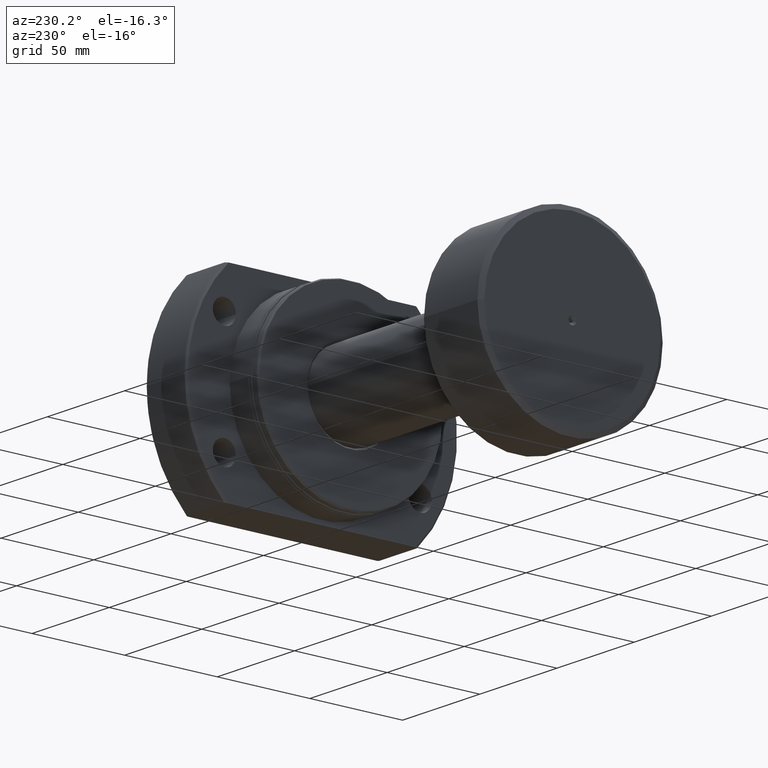
[diagram: clean part render]
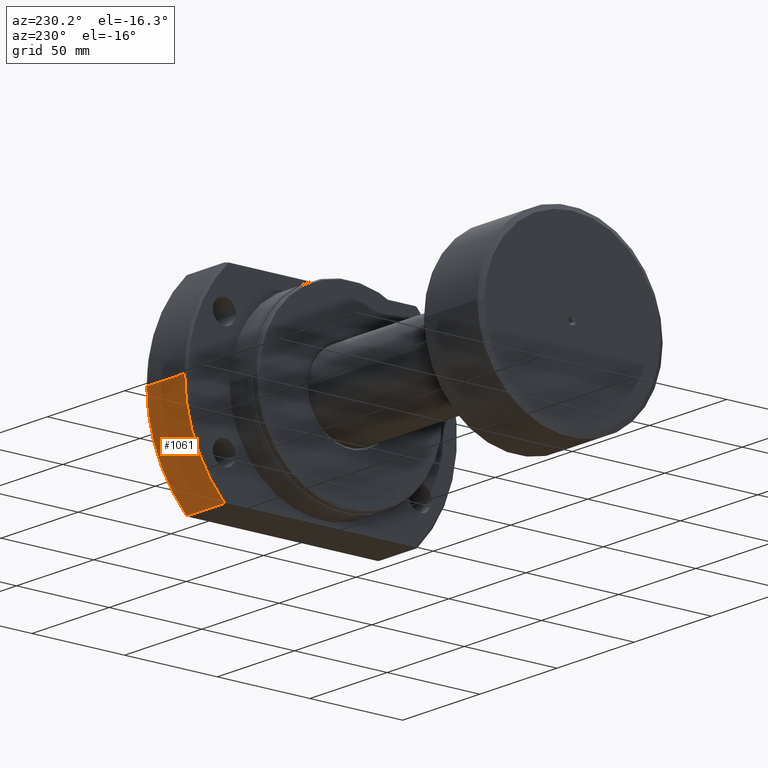
[diagram: same view with one face highlighted and labeled with its STEP entity id]
A machine part, auxiliary view. The second image highlights one B-rep face of the part: STEP entity #1061.
In plain terms, the highlighted cylindrical surface (partial cylindrical patch) has radius 73.5 mm, axis along (1, 0, 0).
Its self-contained STEP definition (entity closure, byte-faithful):
#193 = AXIS2_PLACEMENT_3D ( 'NONE', #1406, #560, #3433 ) ;
#429 = FACE_OUTER_BOUND ( 'NONE', #2197, .T. ) ;
#560 = DIRECTION ( 'NONE',  ( 1.000000000000000000, 5.504030557965630938E-17, -0.000000000000000000 ) ) ;
#707 = ORIENTED_EDGE ( 'NONE', *, *, #3434, .F. ) ;
#708 = DIRECTION ( 'NONE',  ( -9.440671978105083104E-17, 1.000000000000000000, 0.000000000000000000 ) ) ;
#778 = DIRECTION ( 'NONE',  ( -4.720335989052541552E-17, 1.000000000000000000, 0.000000000000000000 ) ) ;
#807 = EDGE_CURVE ( 'NONE', #2280, #3589, #2690, .T. ) ;
#855 = CARTESIAN_POINT ( 'NONE',  ( 44.00000000000007816, 51.94468211472651831, -52.00000000000000711 ) ) ;
#1008 = CARTESIAN_POINT ( 'NONE',  ( 44.00000000000007816, 73.49999999999991473, 0.000000000000000000 ) ) ;
#1061 = ADVANCED_FACE ( 'NONE', ( #429 ), #3022, .T. ) ;
#1209 = LINE ( 'NONE', #2351, #1886 ) ;
#1238 = CARTESIAN_POINT ( 'NONE',  ( 19.49999999999999289, 51.94468211472722885, -52.00000000000000711 ) ) ;
#1296 = EDGE_CURVE ( 'NONE', #1823, #1706, #3469, .T. ) ;
#1406 = CARTESIAN_POINT ( 'NONE',  ( 44.00000000000008527, 2.421773445504882888E-15, 0.000000000000000000 ) ) ;
#1703 = DIRECTION ( 'NONE',  ( 1.000000000000000000, 5.504030557965630938E-17, -0.000000000000000000 ) ) ;
#1706 = VERTEX_POINT ( 'NONE', #2821 ) ;
#1741 = AXIS2_PLACEMENT_3D ( 'NONE', #2199, #1703, #778 ) ;
#1820 = ORIENTED_EDGE ( 'NONE', *, *, #1296, .T. ) ;
#1823 = VERTEX_POINT ( 'NONE', #1238 ) ;
#1869 = ORIENTED_EDGE ( 'NONE', *, *, #807, .F. ) ;
#1879 = LINE ( 'NONE', #2479, #3026 ) ;
#1886 = VECTOR ( 'NONE', #2073, 1000.000000000000000 ) ;
#2073 = DIRECTION ( 'NONE',  ( 1.000000000000000000, -2.886466111666351885E-14, -0.000000000000000000 ) ) ;
#2197 = EDGE_LOOP ( 'NONE', ( #1820, #3313, #1869, #707 ) ) ;
#2199 = CARTESIAN_POINT ( 'NONE',  ( 19.49999999999999645, 1.073285958803297879E-15, 0.000000000000000000 ) ) ;
#2280 = VERTEX_POINT ( 'NONE', #855 ) ;
#2351 = CARTESIAN_POINT ( 'NONE',  ( -6.175615574477433256E-13, 51.94468211472779018, -52.00000000000000711 ) ) ;
#2402 = CARTESIAN_POINT ( 'NONE',  ( 44.50000000000000000, 2.449293598294705724E-15, 0.000000000000000000 ) ) ;
#2479 = CARTESIAN_POINT ( 'NONE',  ( 44.49999999999999289, 73.49999999999991473, 0.000000000000000000 ) ) ;
#2690 = CIRCLE ( 'NONE', #193, 73.49999999999991473 ) ;
#2821 = CARTESIAN_POINT ( 'NONE',  ( 19.49999999999999289, 73.49999999999991473, 0.000000000000000000 ) ) ;
#2877 = AXIS2_PLACEMENT_3D ( 'NONE', #2402, #3576, #708 ) ;
#3022 = CYLINDRICAL_SURFACE ( 'NONE', #2877, 73.49999999999991473 ) ;
#3026 = VECTOR ( 'NONE', #3604, 1000.000000000000000 ) ;
#3313 = ORIENTED_EDGE ( 'NONE', *, *, #3564, .T. ) ;
#3433 = DIRECTION ( 'NONE',  ( -9.440671978105083104E-17, 1.000000000000000000, 0.000000000000000000 ) ) ;
#3434 = EDGE_CURVE ( 'NONE', #1823, #2280, #1209, .T. ) ;
#3469 = CIRCLE ( 'NONE', #1741, 73.49999999999991473 ) ;
#3564 = EDGE_CURVE ( 'NONE', #1706, #3589, #1879, .T. ) ;
#3576 = DIRECTION ( 'NONE',  ( 1.000000000000000000, 5.504030557965630938E-17, -0.000000000000000000 ) ) ;
#3589 = VERTEX_POINT ( 'NONE', #1008 ) ;
#3604 = DIRECTION ( 'NONE',  ( 1.000000000000000000, 5.504030557965630938E-17, -0.000000000000000000 ) ) ;